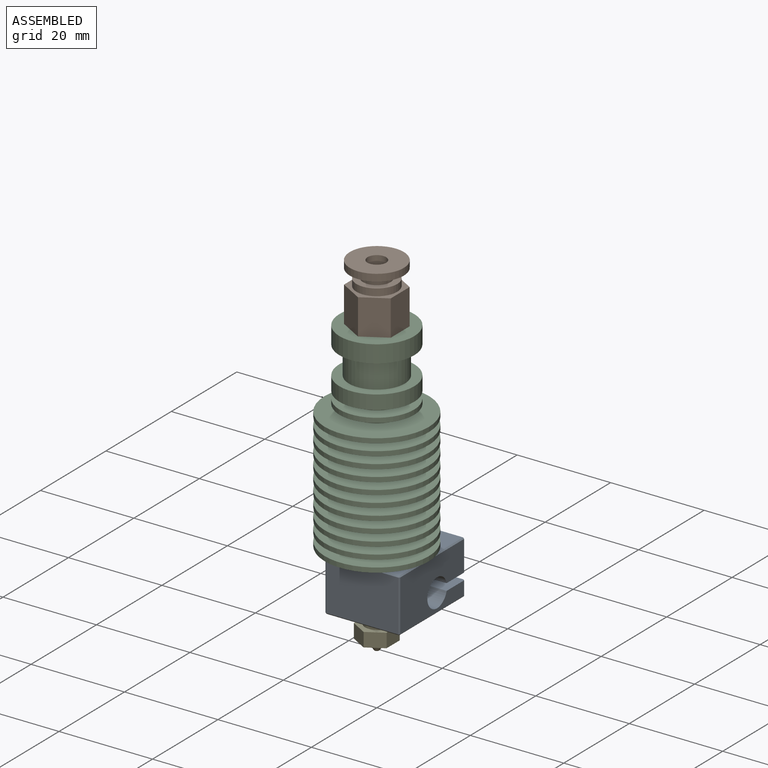
[diagram: assembled view]
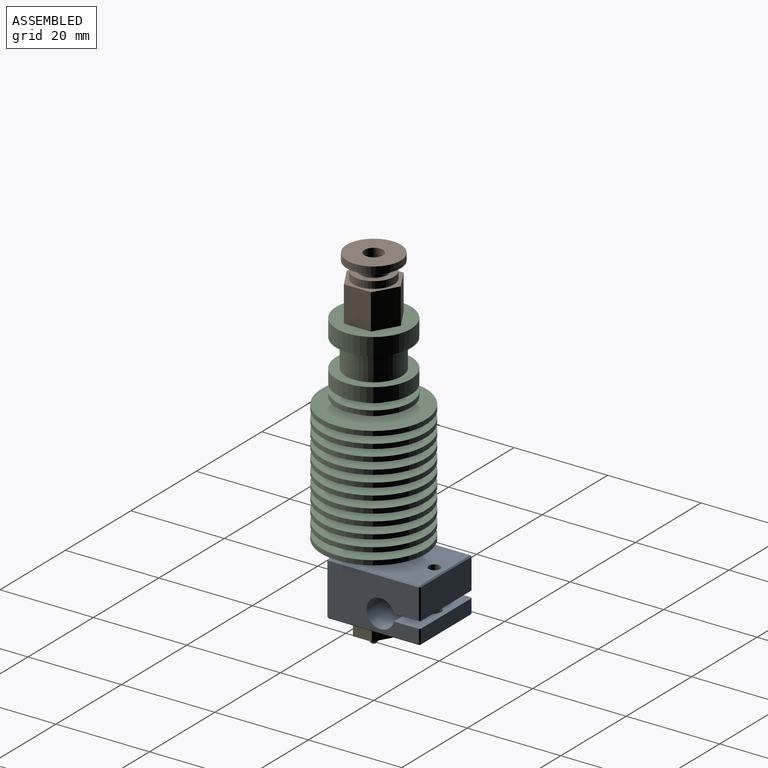
[diagram: assembled view, second angle]
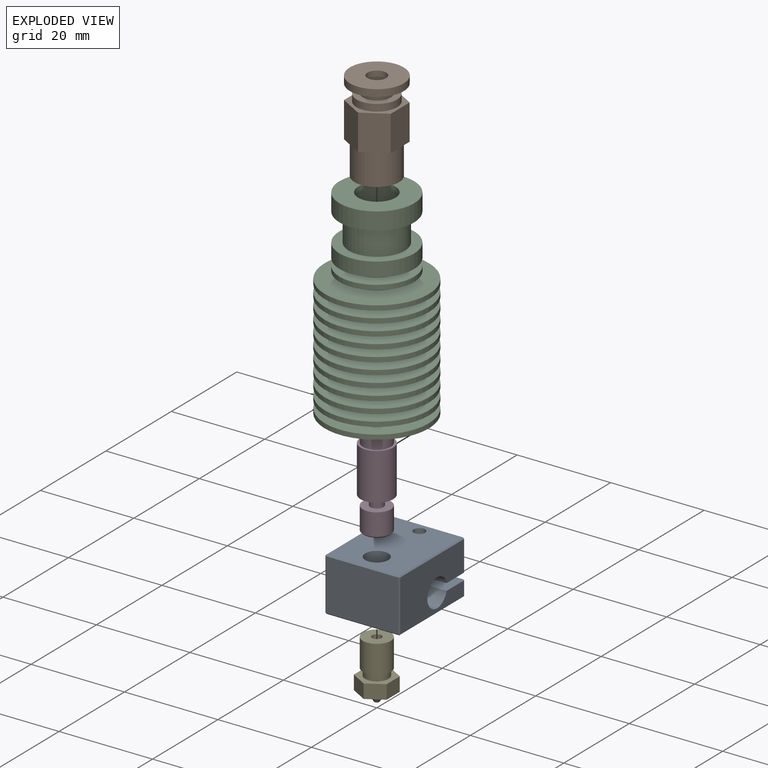
[diagram: exploded view]
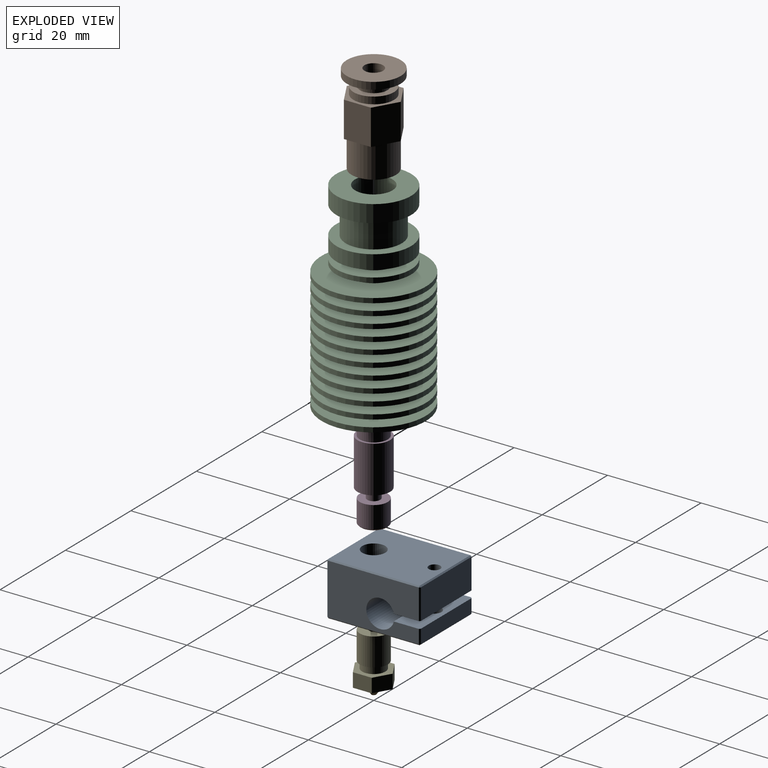
[diagram: exploded view, second angle]
ASSEMBLY  parts=5 mates=4
PART A: 41 faces, bbox 20x16x11.5 mm
  f0: plane 0.25x0.25mm, normal (-0.58,-0.58,-0.58), area 0.1mm2, adj f3,f19,f21
  f1: plane 0.25x0.25mm, normal (-0.58,0.58,-0.58), area 0.1mm2, adj f6,f19,f20
  f2: plane 0.25x0.25mm, normal (0.58,-0.58,-0.58), area 0.1mm2, adj f3,f5,f8
  f3: plane 19.5x0.25mm, normal (0,-0.71,-0.71), area 6.9mm2, adj f0,f2,f25,f40
  f4: plane 0.25x0.25mm, normal (0.58,0.58,-0.58), area 0.1mm2, adj f5,f6,f10
  f5: plane 15.5x0.25mm, normal (0.71,0,-0.71), area 5.5mm2, adj f2,f4,f25,f26
  f6: plane 19.5x0.25mm, normal (0,0.71,-0.71), area 6.9mm2, adj f1,f4,f22,f25
  f7: plane 0.25x0.25mm, normal (0.58,-0.58,0.58), area 0.1mm2, adj f8,f13,f18
  f8: plane 11x0.25mm, normal (0.71,-0.71,0), area 3.9mm2, adj f2,f7,f26,f40
  f9: plane 0.25x0.25mm, normal (0.58,0.58,0.58), area 0.1mm2, adj f10,f17,f18
  f10: plane 11x0.25mm, normal (0.71,0.71,0), area 3.9mm2, adj f4,f9,f22,f26
  f11: plane 0.25x0.25mm, normal (-0.58,-0.58,0.58), area 0.1mm2, adj f12,f13,f16
  f12: plane 6.5x0.25mm, normal (-0.71,-0.71,0), area 2.3mm2, adj f11,f29,f38,f40
  f13: plane 19.5x0.25mm, normal (0,-0.71,0.71), area 6.9mm2, adj f7,f11,f27,f40
  f14: plane 0.25x0.25mm, normal (-0.58,0.58,0.58), area 0.1mm2, adj f15,f16,f17
  f15: plane 6.5x0.25mm, normal (-0.71,0.71,0), area 2.3mm2, adj f14,f22,f29,f38
  f16: plane 15.5x0.25mm, normal (-0.71,0,0.71), area 5.5mm2, adj f11,f14,f27,f38
  f17: plane 19.5x0.25mm, normal (0,0.71,0.71), area 6.9mm2, adj f9,f14,f22,f27
  f18: plane 15.5x0.25mm, normal (0.71,0,0.71), area 5.5mm2, adj f7,f9,f26,f27
  f19: plane 15.5x0.25mm, normal (-0.71,0,-0.71), area 5.5mm2, adj f0,f1,f23,f25
  f20: plane 3x0.25mm, normal (-0.71,0.71,0), area 1.1mm2, adj f1,f22,f23,f24
  f21: plane 3x0.25mm, normal (-0.71,-0.71,0), area 1.1mm2, adj f0,f23,f24,f40
  f22: plane 19.5x11mm, normal (0,1,0), area 178.3mm2, adj f6,f10,f15,f17,f20,f24,f29,f37
  f23: plane 15.5x3mm, normal (-1,0,0), area 46.5mm2, adj f19,f20,f21,f24
  f24: plane 16x5.6mm, normal (0,0,1), area 82.4mm2, adj f20,f21,f22,f23,f28,f37,f40
  f25: plane 19.5x15.5mm, normal (0,0,-1), area 276.2mm2, adj f3,f5,f6,f19,f28,f39
  f26: plane 15.5x11mm, normal (1,0,0), area 170.5mm2, adj f5,f8,f10,f18
  f27: plane 19.5x15.5mm, normal (0,0,1), area 278.5mm2, adj f13,f16,f17,f18,f30,f39
  f28: cylinder r=1.5mm len=3.25mm, axis (0,0,-1), area 30.6mm2, adj f24,f25
  f29: plane 16x5.6mm, normal (0,0,-1), area 84.7mm2, adj f12,f15,f22,f30,f37,f38,f40
  f30: cylinder r=1.23mm len=6.75mm, axis (0,0,1), area 52.1mm2, adj f27,f29
  f31: cone r=0.5mm half-angle=59deg, axis (0,-1,0), area 1.6mm2, adj f32,f34
  f32: cylinder r=1mm len=2mm, axis (0,-1,0), area 12.6mm2, adj f31,f40
  f33: cone r=0.38mm half-angle=59deg, axis (0,-1,0), area 2.1mm2, adj f34
  f34: cylinder r=0.75mm len=2.35mm, axis (0,-1,0), area 11.1mm2, adj f31,f33
  f35: cone r=0.61mm half-angle=59deg, axis (0,-1,0), area 5.5mm2, adj f36
  f36: cylinder r=1.23mm len=3.5mm, axis (0,-1,0), area 27mm2, adj f35,f40
  f37: cylinder r=3mm len=16mm, axis (0,1,0), area 277.3mm2, adj f22,f24,f29,f40
  f38: plane 15.5x6.5mm, normal (-1,0,0), area 100.8mm2, adj f12,f15,f16,f29
  f39: cylinder r=2.46mm len=11.5mm, axis (0,0,1), area 177.6mm2, adj f25,f27
  f40: plane 19.5x11mm, normal (0,-1,0), area 170.4mm2, adj f3,f8,f12,f13,f21,f24,f29,f32
PART B: 20 faces, bbox 11.5x19.4x11.5 mm
  f0: plane 11.55x10mm, normal (0,-1,0), area 15.7mm2, adj f1,f2,f3,f4,f5,f6,f15
  f1: plane 7.6x5mm, normal (-0.5,0,0.87), area 43.9mm2, adj f0,f2,f6,f7
  f2: plane 7.6x5mm, normal (0.5,0,0.87), area 43.9mm2, adj f0,f1,f3,f7
  f3: plane 7.6x5.77mm, normal (1,0,0), area 43.9mm2, adj f0,f2,f4,f7
  f4: plane 7.6x5mm, normal (0.5,0,-0.87), area 43.9mm2, adj f0,f3,f5,f7
  f5: plane 7.6x5mm, normal (-0.5,0,-0.87), area 43.9mm2, adj f0,f4,f6,f7
  f6: plane 7.6x5.77mm, normal (-1,0,0), area 43.9mm2, adj f0,f1,f5,f7
  f7: plane 11.55x10mm, normal (0,1,0), area 27.2mm2, adj f1,f2,f3,f4,f5,f6,f8
  f8: cylinder r=4.35mm len=8.7mm, axis (0,-1,0), area 41mm2, adj f7,f9
  f9: plane 8.7x8.7mm, normal (0,1,0), area 32.1mm2, adj f8,f10
  f10: cylinder r=2.95mm len=5.9mm, axis (0,-1,0), area 37.1mm2, adj f9,f11
  f11: plane 11.55x11.55mm, normal (0,-1,0), area 77.4mm2, adj f10,f19
  f12: plane 4x4mm, normal (0,1,0), area 4mm2, adj f14,f17
  f13: plane 11.55x11.55mm, normal (0,1,0), area 92.2mm2, adj f14,f19
  f14: cylinder r=2mm len=12.6mm, axis (0,-1,0), area 158.3mm2, adj f12,f13
  f15: cylinder r=4.75mm len=9.5mm, axis (0,1,0), area 202.9mm2, adj f0,f16
  f16: plane 9.5x9.5mm, normal (0,-1,0), area 29mm2, adj f15,f18
  f17: cylinder r=1.65mm len=4.8mm, axis (0,-1,0), area 49.8mm2, adj f12,f18
  f18: cone r=1.65mm half-angle=45deg, axis (0,-1,0), area 47.1mm2, adj f16,f17
  f19: cylinder r=5.77mm len=11.55mm, axis (0,1,0), area 54.4mm2, adj f11,f13
PART C: 60 faces, bbox 22.3x42.7x22.3 mm
  f0: cylinder r=5.22mm len=10.44mm, axis (0,1,0), area 49.2mm2, adj f1,f2
  f1: plane 22.3x22.3mm, normal (0,-1,0), area 304.9mm2, adj f0,f58
  f2: plane 22.3x22.3mm, normal (0,1,0), area 304.9mm2, adj f0,f31
  f3: cylinder r=5.44mm len=10.88mm, axis (0,1,0), area 51.3mm2, adj f4,f5
  f4: plane 22.3x22.3mm, normal (0,-1,0), area 297.5mm2, adj f3,f39
  f5: plane 22.3x22.3mm, normal (0,1,0), area 297.5mm2, adj f3,f32
  f6: cylinder r=5.66mm len=11.33mm, axis (0,1,0), area 53.4mm2, adj f7,f8
  f7: plane 22.3x22.3mm, normal (0,-1,0), area 289.8mm2, adj f6,f38
  f8: plane 22.3x22.3mm, normal (0,1,0), area 289.8mm2, adj f6,f33
  f9: plane 22.3x22.3mm, normal (0,1,0), area 281.8mm2, adj f10,f35
  f10: cylinder r=5.88mm len=11.77mm, axis (0,1,0), area 55.5mm2, adj f9,f11
  f11: plane 22.3x22.3mm, normal (0,-1,0), area 281.8mm2, adj f10,f36
  f12: plane 22.3x22.3mm, normal (0,1,0), area 273.5mm2, adj f13,f37
  f13: cylinder r=6.11mm len=12.21mm, axis (0,1,0), area 57.5mm2, adj f12,f14
  f14: plane 22.3x22.3mm, normal (0,-1,0), area 273.5mm2, adj f13,f34
  f15: cylinder r=6mm len=11.99mm, axis (0,1,0), area 56.5mm2, adj f16,f17
  f16: plane 22.3x22.3mm, normal (0,-1,0), area 277.7mm2, adj f15,f35
  f17: plane 22.3x22.3mm, normal (0,1,0), area 277.7mm2, adj f15,f34
  f18: plane 22.3x22.3mm, normal (0,1,0), area 285.8mm2, adj f19,f36
  f19: cylinder r=5.77mm len=11.55mm, axis (0,1,0), area 54.4mm2, adj f18,f20
  f20: plane 22.3x22.3mm, normal (0,-1,0), area 285.8mm2, adj f19,f33
  f21: plane 22.3x22.3mm, normal (0,1,0), area 293.7mm2, adj f22,f38
  f22: cylinder r=5.55mm len=11.11mm, axis (0,1,0), area 52.3mm2, adj f21,f23
  f23: plane 22.3x22.3mm, normal (0,-1,0), area 293.7mm2, adj f22,f32
  f24: plane 22.3x22.3mm, normal (0,1,0), area 301.3mm2, adj f25,f39
  f25: cylinder r=5.33mm len=10.66mm, axis (0,1,0), area 50.3mm2, adj f24,f26
  f26: plane 22.3x22.3mm, normal (0,-1,0), area 301.3mm2, adj f25,f31
  f27: plane 22.3x22.3mm, normal (0,1,0), area 308.5mm2, adj f28,f58
  f28: cylinder r=5.11mm len=10.22mm, axis (0,1,0), area 48.2mm2, adj f27,f29
  f29: plane 22.3x22.3mm, normal (0,-1,0), area 308.5mm2, adj f28,f30
  f30: cylinder r=11.15mm len=22.3mm, axis (0,-1,0), area 70.1mm2, adj f29,f57
  f31: cylinder r=11.15mm len=22.3mm, axis (0,-1,0), area 70.1mm2, adj f2,f26
  f32: cylinder r=11.15mm len=22.3mm, axis (0,-1,0), area 70.1mm2, adj f5,f23
  f33: cylinder r=11.15mm len=22.3mm, axis (0,-1,0), area 70.1mm2, adj f8,f20
  f34: cylinder r=11.15mm len=22.3mm, axis (0,-1,0), area 70.1mm2, adj f14,f17
  f35: cylinder r=11.15mm len=22.3mm, axis (0,-1,0), area 70.1mm2, adj f9,f16
  f36: cylinder r=11.15mm len=22.3mm, axis (0,-1,0), area 70.1mm2, adj f11,f18
  f37: cylinder r=11.15mm len=22.3mm, axis (0,-1,0), area 70.1mm2, adj f12,f59
  f38: cylinder r=11.15mm len=22.3mm, axis (0,-1,0), area 70.1mm2, adj f7,f21
  f39: cylinder r=11.15mm len=22.3mm, axis (0,-1,0), area 70.1mm2, adj f4,f24
  f40: cone r=1.48mm half-angle=59deg, axis (0,-1,0), area 15.9mm2, adj f41,f44
  f41: cylinder r=2.96mm len=19.1mm, axis (0,-1,0), area 355mm2, adj f40,f59
  f42: cone r=2mm half-angle=59deg, axis (0,1,0), area 42.5mm2, adj f43,f44
  f43: cylinder r=4mm len=8mm, axis (0,1,0), area 150.8mm2, adj f42,f45
  f44: cylinder r=2.1mm len=15.94mm, axis (0,1,0), area 210.4mm2, adj f40,f42
  f45: plane 16x16mm, normal (0,1,0), area 150.8mm2, adj f43,f46
  f46: cylinder r=8mm len=16mm, axis (0,-1,0), area 186mm2, adj f45,f47
  f47: plane 16x16mm, normal (0,-1,0), area 88mm2, adj f46,f48
  f48: cylinder r=6mm len=12mm, axis (0,-1,0), area 226.2mm2, adj f47,f49
  f49: plane 16x16mm, normal (0,1,0), area 88mm2, adj f48,f50
  f50: cylinder r=8mm len=16mm, axis (0,-1,0), area 150.8mm2, adj f49,f51
  f51: plane 16x16mm, normal (0,-1,0), area 122.5mm2, adj f50,f52
  f52: cylinder r=5mm len=10mm, axis (0,-1,0), area 47.1mm2, adj f51,f53
  f53: plane 16x16mm, normal (0,1,0), area 122.5mm2, adj f52,f54
  f54: cylinder r=8mm len=16mm, axis (0,-1,0), area 50.3mm2, adj f53,f55
  f55: plane 16x16mm, normal (0,-1,0), area 122.5mm2, adj f54,f56
  f56: cylinder r=5mm len=10mm, axis (0,-1,0), area 47.1mm2, adj f55,f57
  f57: plane 22.3x22.3mm, normal (0,1,0), area 312mm2, adj f30,f56
  f58: cylinder r=11.15mm len=22.3mm, axis (0,-1,0), area 70.1mm2, adj f1,f27
  f59: plane 22.3x22.3mm, normal (0,-1,0), area 363.1mm2, adj f37,f41
PART D: 14 faces, bbox 7x21.2x7 mm
  f0: cone r=2.88mm half-angle=45deg, axis (0,1,0), area 6.4mm2, adj f1,f2
  f1: cylinder r=3mm len=6mm, axis (0,-1,0), area 89.5mm2, adj f0,f13
  f2: plane 5.5x5.5mm, normal (0,-1,0), area 20.6mm2, adj f0,f8
  f3: cone r=2.88mm half-angle=45deg, axis (0,-1,0), area 6.4mm2, adj f4,f5
  f4: plane 5.5x5.5mm, normal (0,1,0), area 9.9mm2, adj f3,f7
  f5: cylinder r=3mm len=6mm, axis (0,-1,0), area 72.6mm2, adj f3,f9
  f6: cone r=1.05mm half-angle=59deg, axis (0,1,0), area 12.5mm2, adj f7,f8
  f7: cylinder r=2.1mm len=5mm, axis (0,1,0), area 66mm2, adj f4,f6
  f8: cylinder r=1mm len=15.54mm, axis (0,1,0), area 97.6mm2, adj f2,f6
  f9: plane 7x7mm, normal (0,1,0), area 10.2mm2, adj f5,f10
  f10: cylinder r=3.5mm len=10mm, axis (0,-1,0), area 219.9mm2, adj f9,f11
  f11: plane 7x7mm, normal (0,-1,0), area 32.3mm2, adj f10,f12
  f12: cylinder r=1.4mm len=2.8mm, axis (0,-1,0), area 18.5mm2, adj f11,f13
  f13: plane 6x6mm, normal (0,1,0), area 22.1mm2, adj f1,f12
PART E: 19 faces, bbox 8.1x12.5x7 mm
  f0: cone r=0.38mm half-angle=59deg, axis (0,1,0), area 1.8mm2, adj f1,f2
  f1: cylinder r=0.75mm len=1.5mm, axis (0,1,0), area 4mm2, adj f0,f3
  f2: cylinder r=0.25mm len=0.7mm, axis (0,1,0), area 1.1mm2, adj f0,f18
  f3: cone r=0.5mm half-angle=59deg, axis (0,1,0), area 1.6mm2, adj f1,f4
  f4: cylinder r=1mm len=10.5mm, axis (0,1,0), area 66mm2, adj f3,f11
  f5: plane 4.04x3mm, normal (0,0,-1), area 12.1mm2, adj f6,f9,f15,f16
  f6: plane 3.5x3mm, normal (-0.87,0,-0.5), area 12.1mm2, adj f5,f7,f15,f16
  f7: plane 3.5x3mm, normal (-0.87,0,0.5), area 12.1mm2, adj f6,f8,f15,f16
  f8: plane 4.04x3mm, normal (0,0,1), area 12.1mm2, adj f7,f10,f15,f16
  f9: plane 3.5x3mm, normal (0.87,0,-0.5), area 12.1mm2, adj f5,f10,f15,f16
  f10: plane 3.5x3mm, normal (0.87,0,0.5), area 12.1mm2, adj f8,f9,f15,f16
  f11: plane 6x6mm, normal (0,1,0), area 25.1mm2, adj f4,f12
  f12: cylinder r=3mm len=6mm, axis (0,-1,0), area 113.1mm2, adj f11,f13
  f13: plane 6x6mm, normal (0,-1,0), area 8.6mm2, adj f12,f14
  f14: cylinder r=2.5mm len=5mm, axis (0,-1,0), area 23.6mm2, adj f13,f15
  f15: plane 8.08x7mm, normal (0,1,0), area 22.8mm2, adj f5,f6,f7,f8,f9,f10,f14
  f16: plane 8.08x7mm, normal (0,-1,0), area 31.1mm2, adj f5,f6,f7,f8,f9,f10,f17
  f17: cone r=1.2mm half-angle=35deg, axis (0,1,0), area 18.4mm2, adj f16,f18
  f18: plane 1x1mm, normal (0,-1,0), area 0.6mm2, adj f2,f17
PLACE A rot(axis=(0,0,-1),90deg) t=(-8,15.5,-13.6)mm
PLACE B rot(axis=(1,0,0),90deg) t=(0,0,38.2)mm
PLACE C rot(axis=(1,0,0),90deg) t=(0,0,0)mm
PLACE D rot(axis=(1,0,0),90deg) t=(0,0,-7.1)mm
PLACE E rot(axis=(0.58,0.58,0.58),120deg) t=(0,0,-20.1)mm
MATE fastened A.f39 <-> D.f1  axis (0,0,1) through (0,0,-2.1)mm
MATE fastened E.f1 <-> A.f39  axis (0,0,-1) through (0,0,-13.6)mm
MATE fastened B.f8 <-> C.f52  axis (0,0,-1) through (0,0,42.7)mm
MATE fastened D.f7 <-> C.f0  axis (0,0,-1) through (0,0,0)mm
